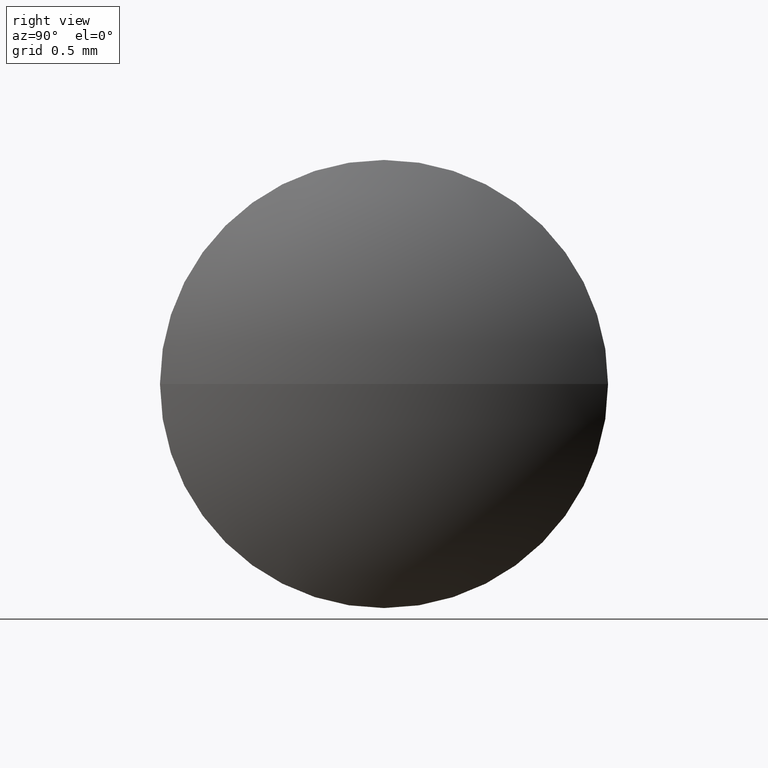
[diagram: clean part render]
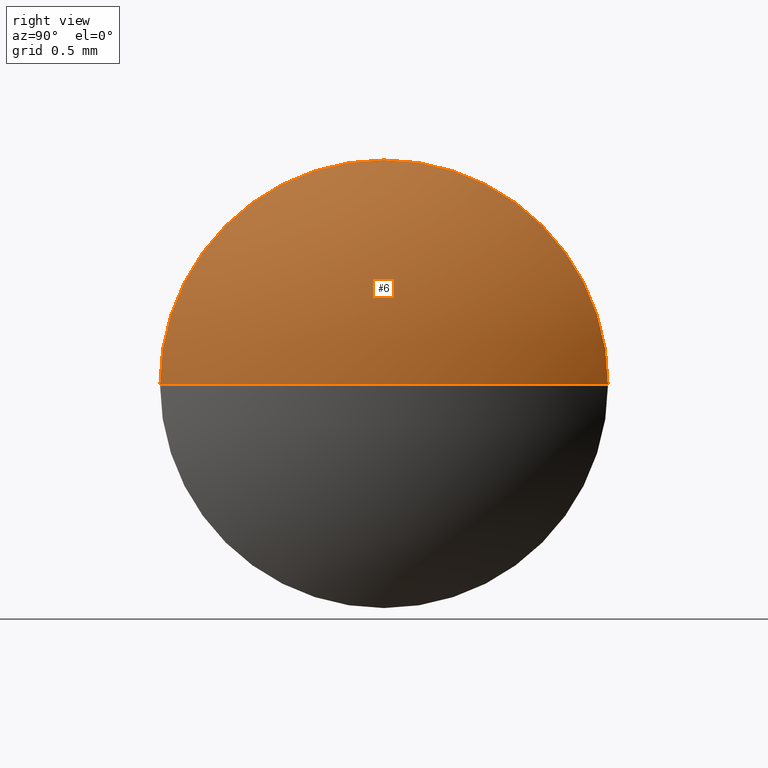
[diagram: same view with one face highlighted and labeled with its STEP entity id]
A machine part, right view. The second image highlights one B-rep face of the part: STEP entity #6.
In plain terms, the highlighted spherical surface has radius 1.7448 mm.
Its self-contained STEP definition (entity closure, byte-faithful):
#6 = ADVANCED_FACE ( 'NONE', ( #159 ), #230, .T. ) ;
#16 = DIRECTION ( 'NONE',  ( 0.0000000000000000000, -1.000000000000000000, -1.224646799147353500E-016 ) ) ;
#53 = DIRECTION ( 'NONE',  ( 1.043935117340608100E-014, -1.000000000000000000, 0.0000000000000000000 ) ) ;
#68 = CARTESIAN_POINT ( 'NONE',  ( 5.877930205979845700, 3.828040395526761700, 0.0000000000000000000 ) ) ;
#69 = EDGE_CURVE ( 'NONE', #294, #268, #111, .T. ) ;
#72 = DIRECTION ( 'NONE',  ( -1.000000000000000000, 0.0000000000000000000, 0.0000000000000000000 ) ) ;
#90 = CARTESIAN_POINT ( 'NONE',  ( 7.622731793281324100, 3.828040395526779400, 0.0000000000000000000 ) ) ;
#91 = ORIENTED_EDGE ( 'NONE', *, *, #69, .F. ) ;
#103 = CIRCLE ( 'NONE', #219, 1.744801587301478200 ) ;
#108 = CARTESIAN_POINT ( 'NONE',  ( 7.307731793281226900, 4.828040395526865100, 1.224646799147462700E-016 ) ) ;
#111 = CIRCLE ( 'NONE', #292, 1.000000000000088800 ) ;
#117 = DIRECTION ( 'NONE',  ( -0.0000000000000000000, 0.0000000000000000000, 1.000000000000000000 ) ) ;
#138 = CIRCLE ( 'NONE', #300, 1.744801587301477700 ) ;
#148 = EDGE_CURVE ( 'NONE', #184, #294, #103, .T. ) ;
#159 = FACE_OUTER_BOUND ( 'NONE', #223, .T. ) ;
#179 = DIRECTION ( 'NONE',  ( -1.000000000000000000, -1.026130654988835600E-014, -0.0000000000000000000 ) ) ;
#184 = VERTEX_POINT ( 'NONE', #90 ) ;
#194 = CARTESIAN_POINT ( 'NONE',  ( 7.307731793281247300, 2.828040395526687500, 0.0000000000000000000 ) ) ;
#219 = AXIS2_PLACEMENT_3D ( 'NONE', #68, #301, #72 ) ;
#222 = CARTESIAN_POINT ( 'NONE',  ( 5.877930205979845700, 3.828040395526761700, 0.0000000000000000000 ) ) ;
#223 = EDGE_LOOP ( 'NONE', ( #238, #255, #91 ) ) ;
#226 = DIRECTION ( 'NONE',  ( 1.040834085585991800E-014, -1.000000000000000000, 0.0000000000000000000 ) ) ;
#228 = AXIS2_PLACEMENT_3D ( 'NONE', #262, #117, #53 ) ;
#229 = CARTESIAN_POINT ( 'NONE',  ( 7.307731793281237600, 3.828040395526776300, 0.0000000000000000000 ) ) ;
#230 = SPHERICAL_SURFACE ( 'NONE', #228, 1.744801587301477900 ) ;
#233 = EDGE_CURVE ( 'NONE', #184, #268, #138, .T. ) ;
#238 = ORIENTED_EDGE ( 'NONE', *, *, #148, .F. ) ;
#255 = ORIENTED_EDGE ( 'NONE', *, *, #233, .T. ) ;
#262 = CARTESIAN_POINT ( 'NONE',  ( 5.877930205979845700, 3.828040395526761700, 0.0000000000000000000 ) ) ;
#268 = VERTEX_POINT ( 'NONE', #108 ) ;
#292 = AXIS2_PLACEMENT_3D ( 'NONE', #229, #179, #226 ) ;
#294 = VERTEX_POINT ( 'NONE', #194 ) ;
#298 = DIRECTION ( 'NONE',  ( 1.256647622139054500E-030, -1.224646799147353200E-016, 1.000000000000000000 ) ) ;
#300 = AXIS2_PLACEMENT_3D ( 'NONE', #222, #298, #16 ) ;
#301 = DIRECTION ( 'NONE',  ( 0.0000000000000000000, 0.0000000000000000000, -1.000000000000000000 ) ) ;